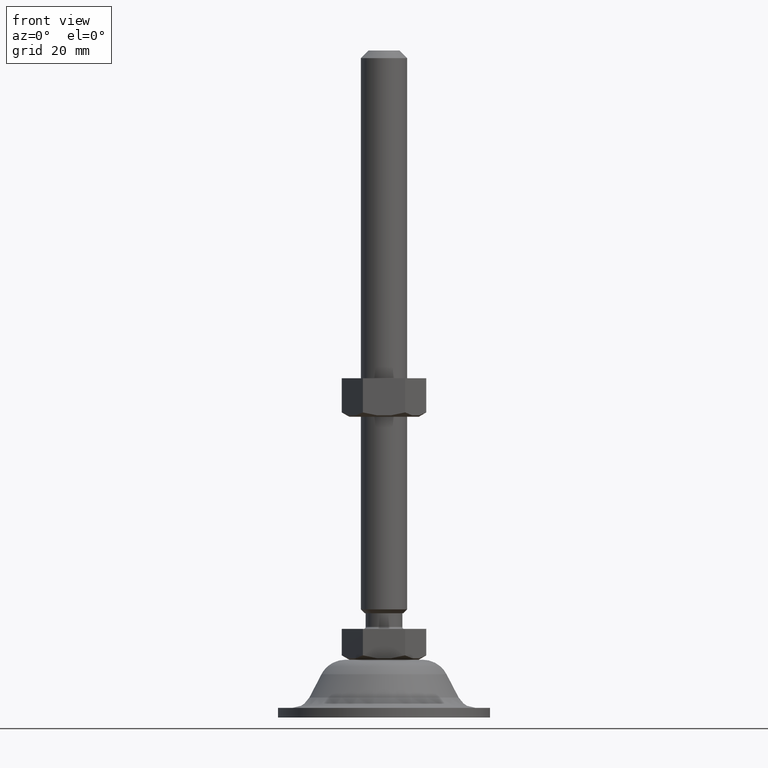
[diagram: clean part render]
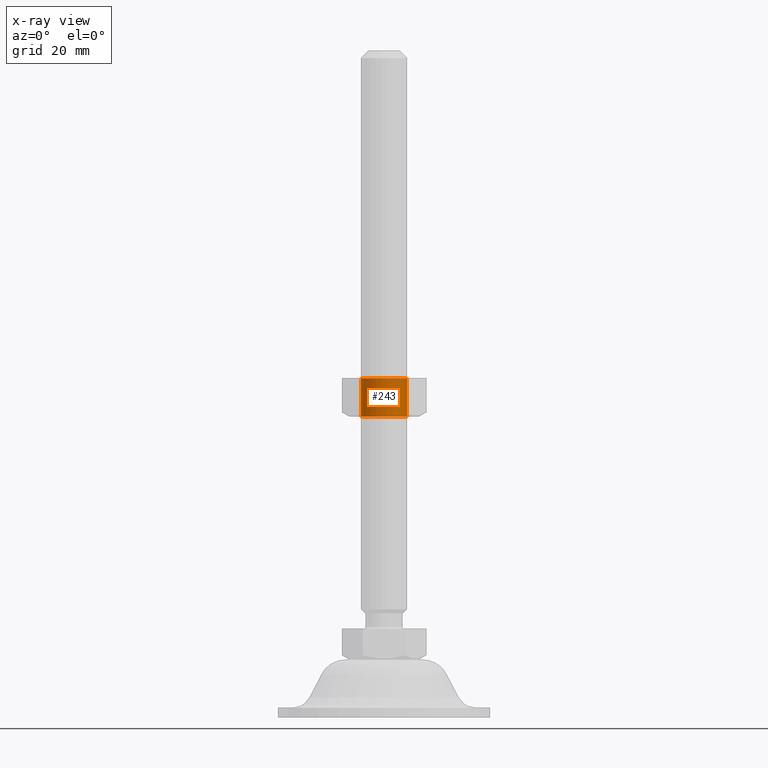
[diagram: x-ray — body ghosted, one internal face saturated and labeled with its STEP entity id]
A machine part, front view, then the same camera in x-ray: the body is ghosted and one INTERNAL B-rep face — a face not visible from any outside direction — is saturated and labeled: STEP entity #243.
In plain terms, the highlighted cylindrical surface (edge-blend (fillet) strip) has radius 6 mm, axis along (0, 0, -1).
Its self-contained STEP definition (entity closure, byte-faithful):
#243=ADVANCED_FACE('',(#1198),#1197,.F.);
#1197=CYLINDRICAL_SURFACE('',#2062,6.00000000000E+00);
#1198=FACE_OUTER_BOUND('',#2063,.T.);
#2059=CARTESIAN_POINT('',(0.00000000000E+00,0.00000000000E+00,-9.35000000103E+02));
#2060=DIRECTION('',(-0.00000000000E+00,0.00000000000E+00,-1.00000000000E+00));
#2061=DIRECTION('',(1.00000000000E+00,1.22464679915E-16,0.00000000000E+00));
#2062=AXIS2_PLACEMENT_3D('',#2059,#2060,#2061);
#2063=EDGE_LOOP('',(#2501,#2502,#2503,#2504));
#2501=ORIENTED_EDGE('',*,*,#2708,.T.);
#2502=ORIENTED_EDGE('',*,*,#2727,.T.);
#2503=ORIENTED_EDGE('',*,*,#2711,.F.);
#2504=ORIENTED_EDGE('',*,*,#2728,.F.);
#2708=EDGE_CURVE('',#4044,#4043,#4051,.T.);
#2711=EDGE_CURVE('',#4071,#4072,#4073,.T.);
#2727=EDGE_CURVE('',#4043,#4072,#4175,.T.);
#2728=EDGE_CURVE('',#4044,#4071,#4181,.T.);
#4043=VERTEX_POINT('',#5055);
#4044=VERTEX_POINT('',#5056);
#4051=CIRCLE('',#5064,6.00000000000E+00);
#4071=VERTEX_POINT('',#5075);
#4072=VERTEX_POINT('',#5076);
#4073=CIRCLE('',#5080,6.00000000000E+00);
#4175=(BOUNDED_CURVE() B_SPLINE_CURVE(1,(#5181,#5182),.UNSPECIFIED.,.F.,.F.) B_SPLINE_CURVE_WITH_KNOTS((2,2),(8.33333343261E-02,9.16666667006E-01),.UNSPECIFIED.) CURVE() GEOMETRIC_REPRESENTATION_ITEM() RATIONAL_B_SPLINE_CURVE((1.00000000000E+00,1.00000000000E+00)) REPRESENTATION_ITEM('') );
#4181=(BOUNDED_CURVE() B_SPLINE_CURVE(1,(#5183,#5184),.UNSPECIFIED.,.F.,.F.) B_SPLINE_CURVE_WITH_KNOTS((2,2),(8.33333333333E-02,9.16666666667E-01),.UNSPECIFIED.) CURVE() GEOMETRIC_REPRESENTATION_ITEM() RATIONAL_B_SPLINE_CURVE((7.50000000000E-01,7.50000000000E-01)) REPRESENTATION_ITEM('') );
#5055=CARTESIAN_POINT('',(6.00000000000E+00,1.18423789293E-15,6.49999998970E+01));
#5056=CARTESIAN_POINT('',(-6.00000000000E+00,0.00000000000E+00,6.49999998970E+01));
#5061=CARTESIAN_POINT('',(0.00000000000E+00,0.00000000000E+00,6.49999998970E+01));
#5062=DIRECTION('',(0.00000000000E+00,0.00000000000E+00,1.00000000000E+00));
#5063=DIRECTION('',(-1.00000000000E+00,-1.22460635382E-16,0.00000000000E+00));
#5064=AXIS2_PLACEMENT_3D('',#5061,#5062,#5063);
#5075=CARTESIAN_POINT('',(-6.00000000000E+00,0.00000000000E+00,5.50000002627E+01));
#5076=CARTESIAN_POINT('',(6.00000000000E+00,1.18423789293E-15,5.50000002627E+01));
#5077=CARTESIAN_POINT('',(0.00000000000E+00,0.00000000000E+00,5.50000002627E+01));
#5078=DIRECTION('',(0.00000000000E+00,0.00000000000E+00,1.00000000000E+00));
#5079=DIRECTION('',(-1.00000000000E+00,-1.22460635382E-16,0.00000000000E+00));
#5080=AXIS2_PLACEMENT_3D('',#5077,#5078,#5079);
#5181=CARTESIAN_POINT('',(6.00000000000E+00,7.34788079488E-16,6.49999998851E+01));
#5182=CARTESIAN_POINT('',(6.00000000000E+00,7.34788079488E-16,5.50000002586E+01));
#5183=CARTESIAN_POINT('',(-6.00000000000E+00,0.00000000000E+00,6.49999998970E+01));
#5184=CARTESIAN_POINT('',(-6.00000000000E+00,0.00000000000E+00,5.50000002627E+01));